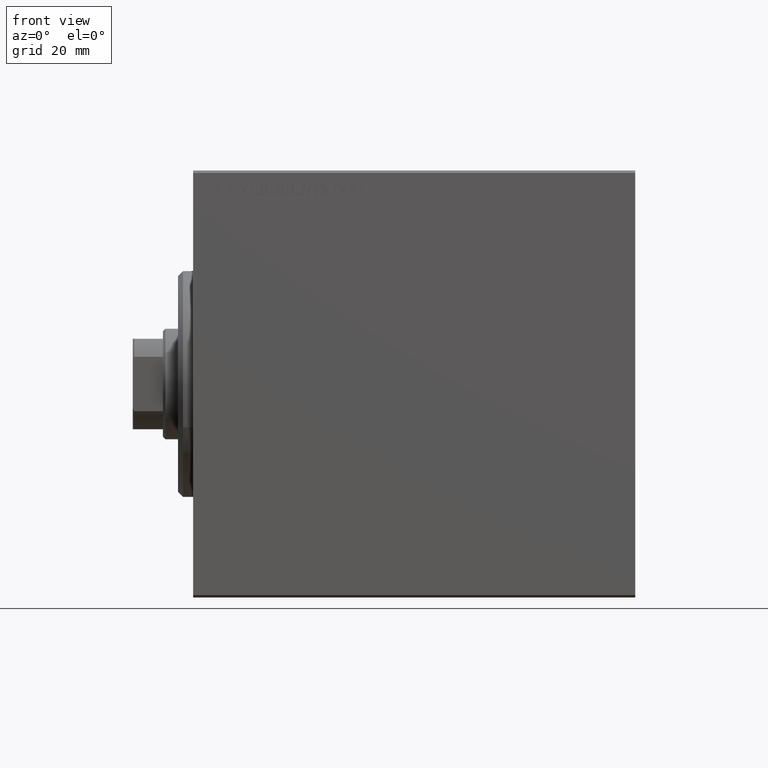
[diagram: clean part render]
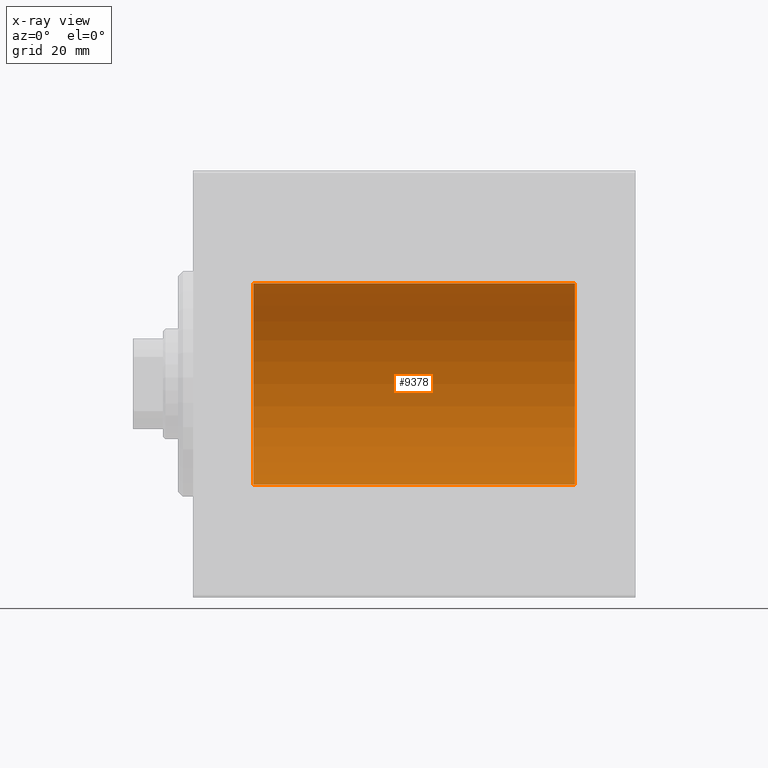
[diagram: x-ray — body ghosted, one internal face saturated and labeled with its STEP entity id]
A machine part, front view, then the same camera in x-ray: the body is ghosted and one INTERNAL B-rep face — a face not visible from any outside direction — is saturated and labeled: STEP entity #9378.
In plain terms, the highlighted cylindrical surface (partial cylindrical patch) has radius 20 mm, axis along (-1, -0, -0).
Its self-contained STEP definition (entity closure, byte-faithful):
#637 = ORIENTED_EDGE ( 'NONE', *, *, #33371, .F. ) ;
#1623 = FACE_OUTER_BOUND ( 'NONE', #8679, .T. ) ;
#3577 = EDGE_CURVE ( 'NONE', #25125, #40852, #6045, .T. ) ;
#4350 = VERTEX_POINT ( 'NONE', #28258 ) ;
#4374 = DIRECTION ( 'NONE',  ( -1.000000000000000000, 0.000000000000000000, 0.000000000000000000 ) ) ;
#4535 = EDGE_CURVE ( 'NONE', #8250, #4350, #12430, .T. ) ;
#6045 = CIRCLE ( 'NONE', #10958, 20.00000000000000000 ) ;
#8250 = VERTEX_POINT ( 'NONE', #22603 ) ;
#8679 = EDGE_LOOP ( 'NONE', ( #637, #15199, #24833, #42748 ) ) ;
#9378 = ADVANCED_FACE ( 'NONE', ( #1623 ), #11987, .F. ) ;
#10958 = AXIS2_PLACEMENT_3D ( 'NONE', #18086, #4374, #31347 ) ;
#11987 = CYLINDRICAL_SURFACE ( 'NONE', #18884, 20.00000000000000000 ) ;
#12120 = DIRECTION ( 'NONE',  ( -1.000000000000000000, 0.000000000000000000, 0.000000000000000000 ) ) ;
#12430 = CIRCLE ( 'NONE', #27956, 20.00000000000000000 ) ;
#13738 = LINE ( 'NONE', #29920, #42016 ) ;
#15199 = ORIENTED_EDGE ( 'NONE', *, *, #4535, .F. ) ;
#18086 = CARTESIAN_POINT ( 'NONE',  ( 11.99999999999999645, 0.000000000000000000, 0.000000000000000000 ) ) ;
#18884 = AXIS2_PLACEMENT_3D ( 'NONE', #26301, #26740, #35663 ) ;
#22568 = DIRECTION ( 'NONE',  ( -1.000000000000000000, -0.000000000000000000, -0.000000000000000000 ) ) ;
#22603 = CARTESIAN_POINT ( 'NONE',  ( 76.00000000000000000, 0.000000000000000000, 20.00000000000000000 ) ) ;
#23784 = CARTESIAN_POINT ( 'NONE',  ( 11.99999999999999645, 0.000000000000000000, 20.00000000000000000 ) ) ;
#24833 = ORIENTED_EDGE ( 'NONE', *, *, #43065, .T. ) ;
#25125 = VERTEX_POINT ( 'NONE', #23784 ) ;
#25191 = CARTESIAN_POINT ( 'NONE',  ( 76.00000000000000000, 0.000000000000000000, 0.000000000000000000 ) ) ;
#26131 = CARTESIAN_POINT ( 'NONE',  ( 11.99999999999999645, 2.449293598294706513E-15, -20.00000000000000000 ) ) ;
#26301 = CARTESIAN_POINT ( 'NONE',  ( 76.00000000000000000, 0.000000000000000000, 0.000000000000000000 ) ) ;
#26740 = DIRECTION ( 'NONE',  ( -1.000000000000000000, -0.000000000000000000, -0.000000000000000000 ) ) ;
#26749 = CARTESIAN_POINT ( 'NONE',  ( 76.00000000000000000, 0.000000000000000000, 20.00000000000000000 ) ) ;
#27956 = AXIS2_PLACEMENT_3D ( 'NONE', #25191, #12120, #32274 ) ;
#28258 = CARTESIAN_POINT ( 'NONE',  ( 76.00000000000000000, 2.449293598294706513E-15, -20.00000000000000000 ) ) ;
#29920 = CARTESIAN_POINT ( 'NONE',  ( 76.00000000000000000, 2.449293598294706513E-15, -20.00000000000000000 ) ) ;
#31347 = DIRECTION ( 'NONE',  ( 0.000000000000000000, 0.000000000000000000, 1.000000000000000000 ) ) ;
#32274 = DIRECTION ( 'NONE',  ( 0.000000000000000000, 0.000000000000000000, 1.000000000000000000 ) ) ;
#33371 = EDGE_CURVE ( 'NONE', #4350, #40852, #13738, .T. ) ;
#33461 = DIRECTION ( 'NONE',  ( -1.000000000000000000, -0.000000000000000000, -0.000000000000000000 ) ) ;
#35663 = DIRECTION ( 'NONE',  ( 0.000000000000000000, 0.000000000000000000, 1.000000000000000000 ) ) ;
#36275 = LINE ( 'NONE', #26749, #37900 ) ;
#37900 = VECTOR ( 'NONE', #22568, 1000.000000000000000 ) ;
#40852 = VERTEX_POINT ( 'NONE', #26131 ) ;
#42016 = VECTOR ( 'NONE', #33461, 1000.000000000000000 ) ;
#42748 = ORIENTED_EDGE ( 'NONE', *, *, #3577, .T. ) ;
#43065 = EDGE_CURVE ( 'NONE', #8250, #25125, #36275, .T. ) ;